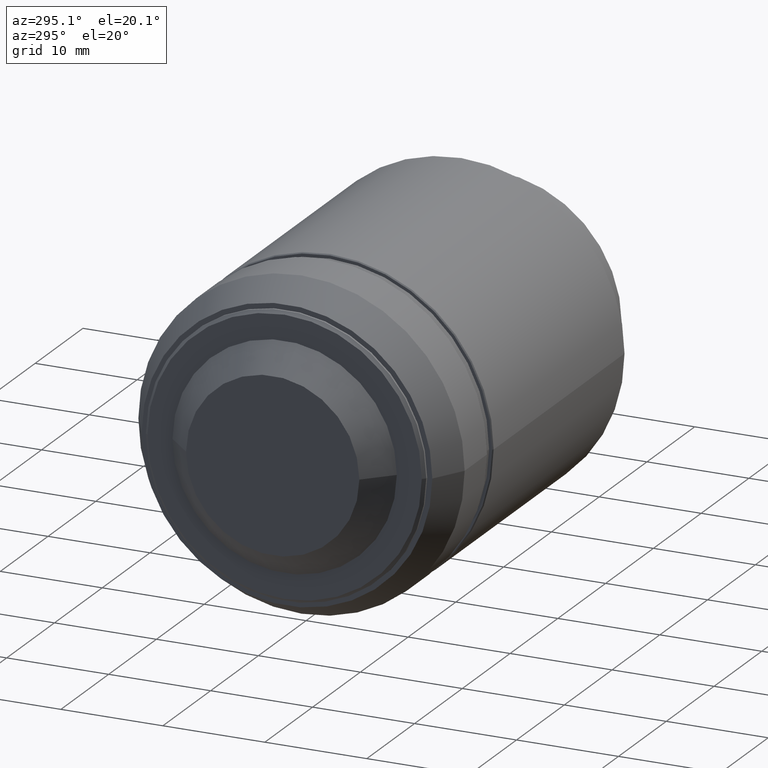
[diagram: clean part render]
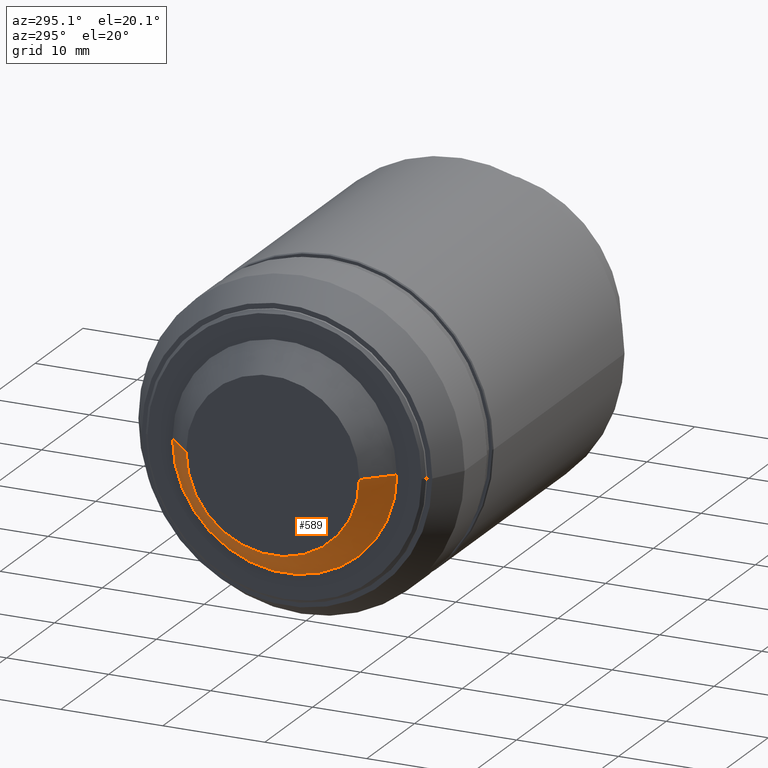
[diagram: same view with one face highlighted and labeled with its STEP entity id]
A machine part, auxiliary view. The second image highlights one B-rep face of the part: STEP entity #589.
In plain terms, the highlighted conical surface has half-angle 45 deg.
Its self-contained STEP definition (entity closure, byte-faithful):
#13 = AXIS2_PLACEMENT_3D ( 'NONE', #21, #1340, #889 ) ;
#19 = ORIENTED_EDGE ( 'NONE', *, *, #1149, .T. ) ;
#21 = CARTESIAN_POINT ( 'NONE',  ( -1.500000000000000000, -5.613287612504789354E-15, 0.000000000000000000 ) ) ;
#23 = VERTEX_POINT ( 'NONE', #779 ) ;
#128 = EDGE_CURVE ( 'NONE', #577, #23, #249, .T. ) ;
#201 = LINE ( 'NONE', #1396, #1088 ) ;
#246 = CARTESIAN_POINT ( 'NONE',  ( -4.000000000000000000, 8.500000000000000000, -1.040949779275249943E-15 ) ) ;
#249 = LINE ( 'NONE', #599, #665 ) ;
#259 = AXIS2_PLACEMENT_3D ( 'NONE', #294, #815, #1365 ) ;
#276 = CIRCLE ( 'NONE', #13, 11.00000000000000000 ) ;
#294 = CARTESIAN_POINT ( 'NONE',  ( -4.000000000000000000, -5.968558980384839763E-15, 0.000000000000000000 ) ) ;
#323 = DIRECTION ( 'NONE',  ( 0.7071067811865470176, 0.7071067811865480168, -8.659560562354929160E-17 ) ) ;
#326 = CARTESIAN_POINT ( 'NONE',  ( -1.500000000000000000, -5.613287612504789354E-15, 0.000000000000000000 ) ) ;
#363 = ORIENTED_EDGE ( 'NONE', *, *, #128, .F. ) ;
#467 = ORIENTED_EDGE ( 'NONE', *, *, #1371, .F. ) ;
#485 = CONICAL_SURFACE ( 'NONE', #861, 11.00000000000000000, 0.7853981633974476129 ) ;
#511 = CARTESIAN_POINT ( 'NONE',  ( -4.000000000000000000, -8.500000000000000000, 0.000000000000000000 ) ) ;
#570 = ORIENTED_EDGE ( 'NONE', *, *, #1001, .T. ) ;
#577 = VERTEX_POINT ( 'NONE', #511 ) ;
#589 = ADVANCED_FACE ( 'NONE', ( #1397 ), #485, .T. ) ;
#599 = CARTESIAN_POINT ( 'NONE',  ( -1.500000000000000000, -11.00000000000000000, 0.000000000000000000 ) ) ;
#637 = DIRECTION ( 'NONE',  ( 1.379893674072460211E-16, -1.000000000000000000, 0.000000000000000000 ) ) ;
#665 = VECTOR ( 'NONE', #1012, 1000.000000000000000 ) ;
#761 = EDGE_LOOP ( 'NONE', ( #570, #19, #467, #363 ) ) ;
#779 = CARTESIAN_POINT ( 'NONE',  ( -1.500000000000000000, -11.00000000000000000, 0.000000000000000000 ) ) ;
#805 = CARTESIAN_POINT ( 'NONE',  ( -1.500000000000000000, 11.00000000000000000, -1.347111479062089982E-15 ) ) ;
#808 = VERTEX_POINT ( 'NONE', #246 ) ;
#815 = DIRECTION ( 'NONE',  ( 1.000000000000000000, 1.421085471520199908E-16, 0.000000000000000000 ) ) ;
#861 = AXIS2_PLACEMENT_3D ( 'NONE', #326, #1321, #637 ) ;
#889 = DIRECTION ( 'NONE',  ( -1.379893674072460211E-16, 1.000000000000000000, 0.000000000000000000 ) ) ;
#1001 = EDGE_CURVE ( 'NONE', #577, #808, #1252, .T. ) ;
#1012 = DIRECTION ( 'NONE',  ( 0.7071067811865480168, -0.7071067811865470176, 0.000000000000000000 ) ) ;
#1088 = VECTOR ( 'NONE', #323, 1000.000000000000000 ) ;
#1149 = EDGE_CURVE ( 'NONE', #808, #1393, #201, .T. ) ;
#1252 = CIRCLE ( 'NONE', #259, 8.500000000000000000 ) ;
#1321 = DIRECTION ( 'NONE',  ( 1.000000000000000000, 1.421085471520199908E-16, 0.000000000000000000 ) ) ;
#1340 = DIRECTION ( 'NONE',  ( 1.000000000000000000, 1.421085471520199908E-16, 0.000000000000000000 ) ) ;
#1365 = DIRECTION ( 'NONE',  ( -1.020425574104004122E-16, 1.000000000000000000, 0.000000000000000000 ) ) ;
#1371 = EDGE_CURVE ( 'NONE', #23, #1393, #276, .T. ) ;
#1393 = VERTEX_POINT ( 'NONE', #805 ) ;
#1396 = CARTESIAN_POINT ( 'NONE',  ( -1.500000000000000000, 11.00000000000000000, -1.347111479062089982E-15 ) ) ;
#1397 = FACE_OUTER_BOUND ( 'NONE', #761, .T. ) ;